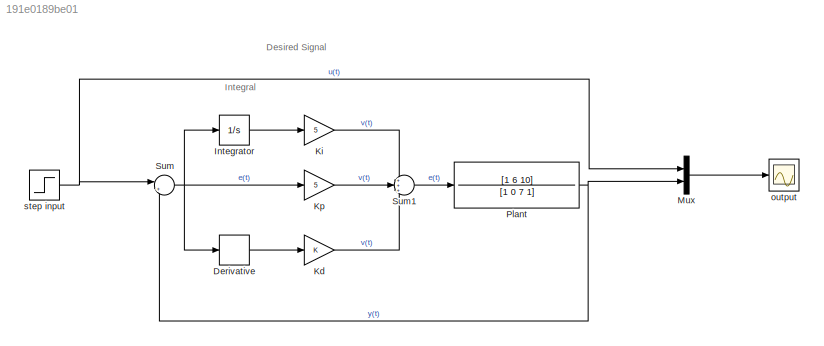
MODEL slx_191e0189be01
KIND model
CONFIG AbsTol = auto
CONFIG EnableMultiTasking = off
CONFIG FixedStep = auto
CONFIG MaxStep = auto
CONFIG MinStep = auto
CONFIG RelTol = 1e-3
CONFIG SampleTimeConstraint = Unconstrained
CONFIG Solver = VariableStepAuto
CONFIG SolverName = VariableStepAuto
CONFIG StartTime = 0.0
CONFIG StopTime = 20
BLOCK [Derivative] Derivative
BLOCK [Integrator] Integrator
  Ports = [1, 1]
BLOCK [Gain] Kd
BLOCK [Gain] Ki
  Gain = 5
BLOCK [Gain] Kp
  Gain = 5
BLOCK [Mux] Mux
  DisplayOption = bar
  Inputs = 2
  Ports = [2, 1]
BLOCK [TransferFcn] Plant
  Denominator = [1 0 7 1]
  Numerator = [1 6 10]
BLOCK [Sum] Sum
  Inputs = |+-
  Ports = [2, 1]
BLOCK [Sum] Sum1
  Inputs = +++
  Ports = [3, 1]
BLOCK [Scope] output
  Floating = off
  NumInputPorts = 1
  Ports = [1]
  ScopeSpecificationString = Simulink.scopes.TimeScopeBlockCfg('CurrentConfiguration', extmgr.ConfigurationSet(extmgr.Configuration('Core','General UI',true),extmgr.Configuration('Core','Source UI',true),extmgr.Configuration('Sources','WiredSimulink',true),extmgr.Configuration('Visuals','Time Domain',true,'SerializedDisplays',{struct('MinYLimReal','-0.17045','MaxYLimReal','1.53403','YLabelReal','','MinYLimMag','0.00000','MaxY...<+1431ch>
BLOCK [Step] step input
  SampleTime = 0
ANNOTATION (root): Desired Signal
ANNOTATION (root): Integral
LINE Derivative:1 -> Kd:1
LINE Integrator:1 -> Ki:1
LINE Kd:1 -> Sum1:3
LINE Ki:1 -> Sum1:1
LINE Kp:1 -> Sum1:2
LINE Mux:1 -> output:1
NET Plant:1 -> Mux:2, Sum:2
LINE Sum1:1 -> Plant:1
NET Sum:1 -> Derivative:1, Integrator:1, Kp:1
NET step input:1 -> Mux:1, Sum:1
note: NET lines group one-source signal fan-out (src -> all destinations, sorted); 1:1 wires keep LINE
